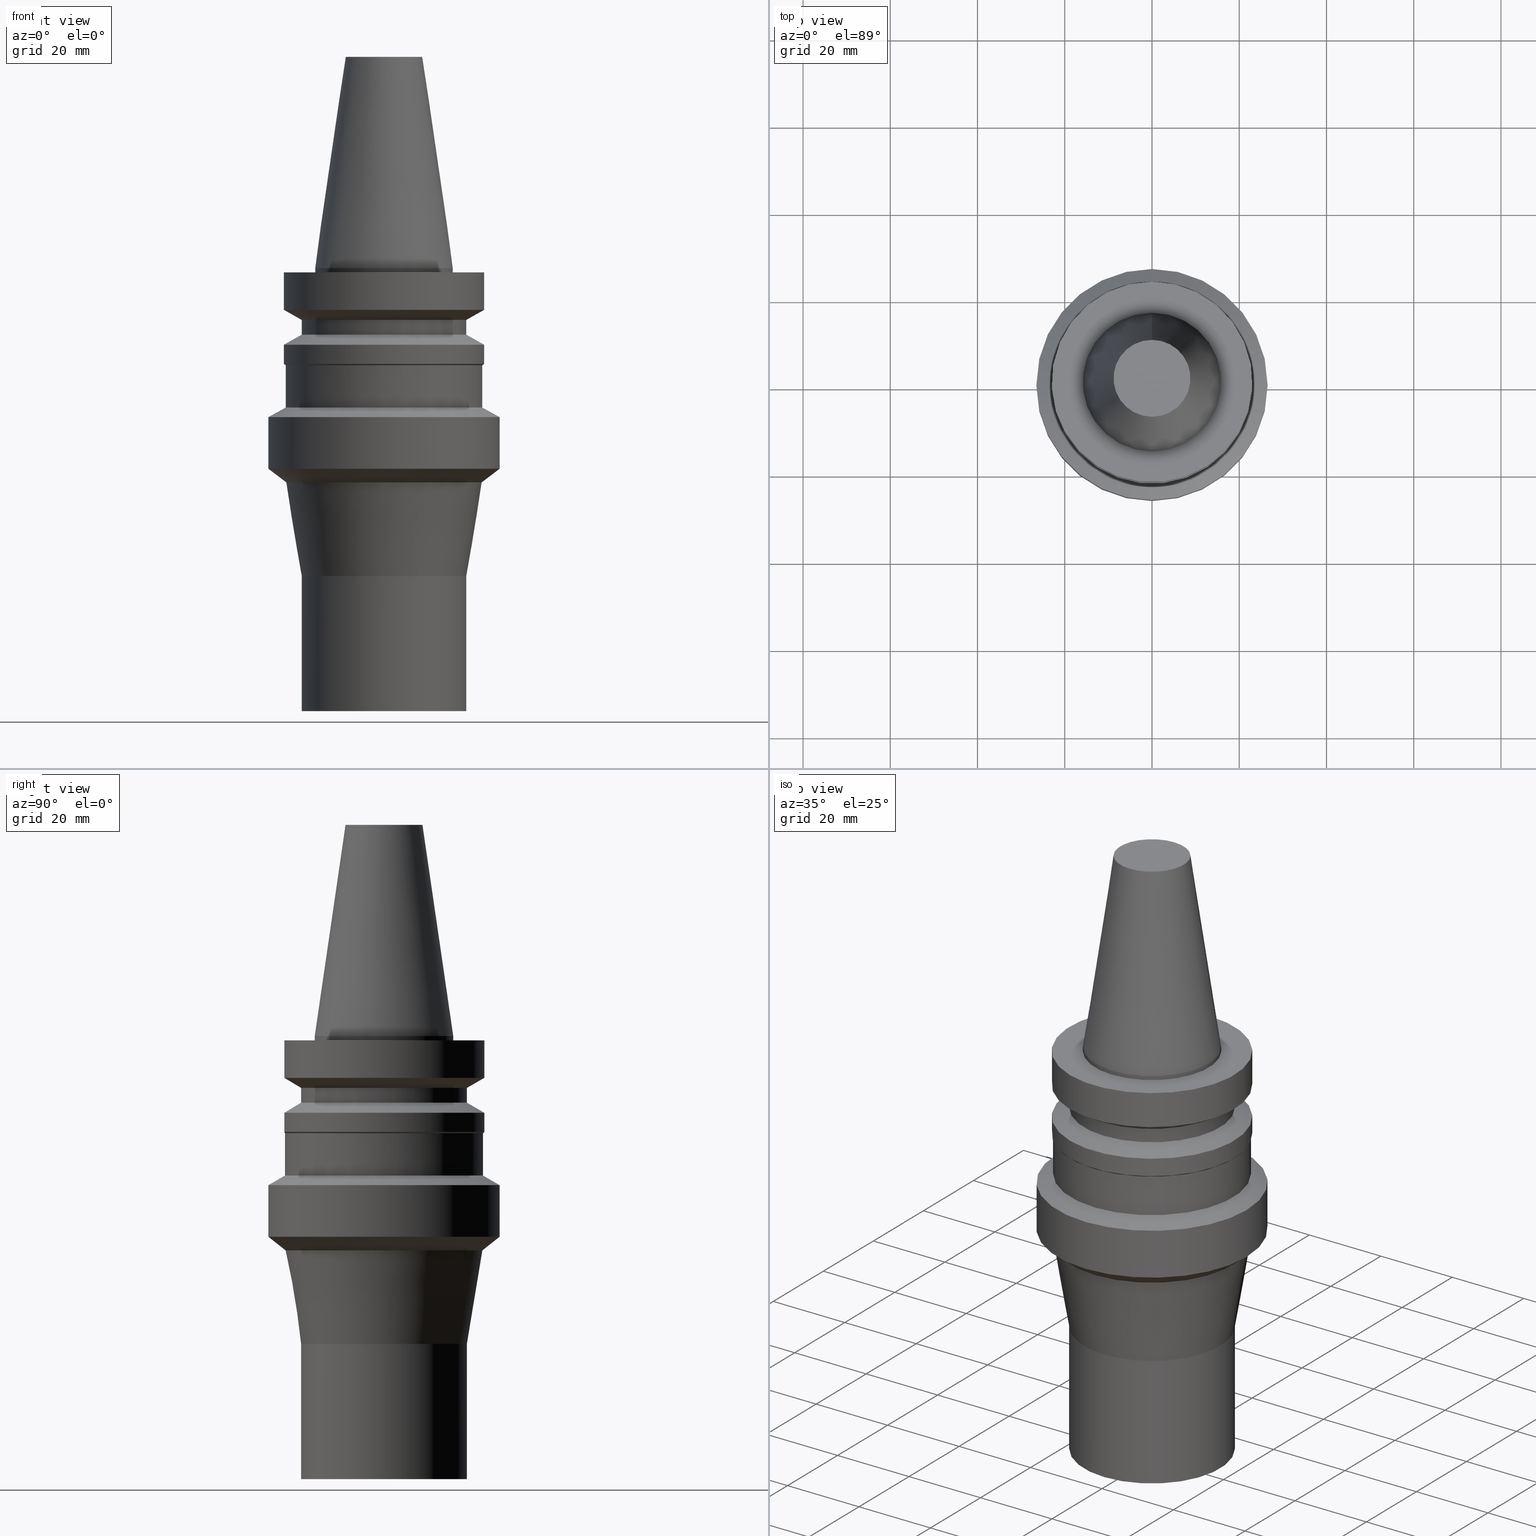
[diagram: canonical four-view strip — front | top / right | iso, engineering-drawing reading convention]
A machine part, canonical four-view strip (front | top / right | iso — engineering-drawing reading convention). The complete STEP part file that produces these views, byte-faithful:
ISO-10303-21;
HEADER;
FILE_DESCRIPTION((''),'1');
FILE_NAME('V:/90_\X2\53D65F9730C730FC30BF\X0\/00_\X2\6DE18DEF30C730FC30BF\X0\/ALL/BBT-BKUS\X2\FF76FF80FF9BFF78FF9E752852A05DE556F3\X0\201801/BBT30-HDC/BBT30-HDC.750-4.stp','2018-02-07T04:40:43',(''),(''),'Spatial Interop R21 SP3','Kubotek KeyCreator 2011 V10.0.2 (22737)',' ');
FILE_SCHEMA(('automotive_design'));
ENDSEC;
DATA;
#1=MECHANICAL_DESIGN_GEOMETRIC_PRESENTATION_REPRESENTATION(' ',(#10,#11,#12,#13,#14,#15,#16,#17,#18,#19,#20,#21,#22,#23,#24,#25,#26,#27,#28,#29,#30,#31,#32,#33,#34,#35,#36,#37,#38,#39,#40,#41,#42,#43),#6);
#2=PRODUCT_DEFINITION_CONTEXT('',#44,'design');
#3=APPLICATION_PROTOCOL_DEFINITION('INTERNATIONAL STANDARD','automotive_design',1994,#44);
#4=PRODUCT_CATEGORY_RELATIONSHIP('NONE','NONE',#45,#46);
#5=SHAPE_DEFINITION_REPRESENTATION(#47,#48);
#6= (GEOMETRIC_REPRESENTATION_CONTEXT(3)GLOBAL_UNCERTAINTY_ASSIGNED_CONTEXT((#51))GLOBAL_UNIT_ASSIGNED_CONTEXT((#53,#54,#55))REPRESENTATION_CONTEXT('NONE','WORKSPACE'));
#10=STYLED_ITEM('',(#57),#58);
#11=STYLED_ITEM('',(#59,#60),#61);
#12=STYLED_ITEM('',(#62),#63);
#13=STYLED_ITEM('',(#64,#65),#66);
#14=STYLED_ITEM('',(#67),#68);
#15=STYLED_ITEM('',(#69,#70),#71);
#16=STYLED_ITEM('',(#72),#73);
#17=STYLED_ITEM('',(#74,#75),#76);
#18=STYLED_ITEM('',(#77),#78);
#19=STYLED_ITEM('',(#79),#80);
#20=STYLED_ITEM('',(#81,#82),#83);
#21=STYLED_ITEM('',(#84,#85),#86);
#22=STYLED_ITEM('',(#87),#88);
#23=STYLED_ITEM('',(#89,#90),#91);
#24=STYLED_ITEM('',(#92,#93),#94);
#25=STYLED_ITEM('',(#95,#96),#97);
#26=STYLED_ITEM('',(#98,#99),#100);
#27=STYLED_ITEM('',(#101,#102),#103);
#28=STYLED_ITEM('',(#104,#105),#106);
#29=STYLED_ITEM('',(#107),#108);
#30=STYLED_ITEM('',(#109,#110),#111);
#31=STYLED_ITEM('',(#112),#113);
#32=STYLED_ITEM('',(#114),#115);
#33=STYLED_ITEM('',(#116,#117),#118);
#34=STYLED_ITEM('',(#119,#120),#121);
#35=STYLED_ITEM('',(#122,#123),#124);
#36=STYLED_ITEM('',(#125),#126);
#37=STYLED_ITEM('',(#127),#128);
#38=STYLED_ITEM('',(#129),#130);
#39=STYLED_ITEM('',(#131),#132);
#40=STYLED_ITEM('',(#133),#134);
#41=STYLED_ITEM('',(#135,#136),#137);
#42=STYLED_ITEM('',(#138,#139),#140);
#43=STYLED_ITEM('',(#141),#142);
#44=APPLICATION_CONTEXT(' ');
#45=PRODUCT_CATEGORY('part','NONE');
#46=PRODUCT_RELATED_PRODUCT_CATEGORY('detail',' ',(#143));
#47=PRODUCT_DEFINITION_SHAPE('NONE','NONE',#144);
#48=ADVANCED_BREP_SHAPE_REPRESENTATION('Unnamed[1]',(#111,#145),#6);
#51=UNCERTAINTY_MEASURE_WITH_UNIT(LENGTH_MEASURE(1.0E-006),#53,'','');
#53= (CONVERSION_BASED_UNIT('MILLIMETRE',#148)LENGTH_UNIT()NAMED_UNIT(#151));
#54= (NAMED_UNIT(#153)PLANE_ANGLE_UNIT()SI_UNIT($,.RADIAN.));
#55= (NAMED_UNIT(#153)SOLID_ANGLE_UNIT()SI_UNIT($,.STERADIAN.));
#57=PRESENTATION_STYLE_ASSIGNMENT((#159));
#58=EDGE_CURVE('Unnamed[1]',#160,#160,#161,.T.);
#59=PRESENTATION_STYLE_ASSIGNMENT((#162));
#60=PRESENTATION_STYLE_ASSIGNMENT((#163));
#61=ADVANCED_FACE('Unnamed[1]',(#164,#165),#166,.T.);
#62=PRESENTATION_STYLE_ASSIGNMENT((#167));
#63=EDGE_CURVE('Unnamed[1]',#168,#168,#169,.T.);
#64=PRESENTATION_STYLE_ASSIGNMENT((#170));
#65=PRESENTATION_STYLE_ASSIGNMENT((#171));
#66=ADVANCED_FACE('Unnamed[1]',(#172,#173),#174,.T.);
#67=PRESENTATION_STYLE_ASSIGNMENT((#175));
#68=EDGE_CURVE('Unnamed[1]',#176,#176,#177,.T.);
#69=PRESENTATION_STYLE_ASSIGNMENT((#178));
#70=PRESENTATION_STYLE_ASSIGNMENT((#179));
#71=ADVANCED_FACE('Unnamed[1]',(#180),#181,.T.);
#72=PRESENTATION_STYLE_ASSIGNMENT((#182));
#73=EDGE_CURVE('Unnamed[1]',#183,#183,#184,.T.);
#74=PRESENTATION_STYLE_ASSIGNMENT((#185));
#75=PRESENTATION_STYLE_ASSIGNMENT((#186));
#76=ADVANCED_FACE('Unnamed[1]',(#187,#188),#189,.T.);
#77=PRESENTATION_STYLE_ASSIGNMENT((#190));
#78=EDGE_CURVE('Unnamed[1]',#191,#191,#192,.T.);
#79=PRESENTATION_STYLE_ASSIGNMENT((#193));
#80=EDGE_CURVE('Unnamed[1]',#194,#194,#195,.T.);
#81=PRESENTATION_STYLE_ASSIGNMENT((#196));
#82=PRESENTATION_STYLE_ASSIGNMENT((#197));
#83=ADVANCED_FACE('Unnamed[1]',(#198,#199),#200,.T.);
#84=PRESENTATION_STYLE_ASSIGNMENT((#201));
#85=PRESENTATION_STYLE_ASSIGNMENT((#202));
#86=ADVANCED_FACE('Unnamed[1]',(#203,#204),#205,.T.);
#87=PRESENTATION_STYLE_ASSIGNMENT((#206));
#88=EDGE_CURVE('Unnamed[1]',#207,#207,#208,.T.);
#89=PRESENTATION_STYLE_ASSIGNMENT((#209));
#90=PRESENTATION_STYLE_ASSIGNMENT((#210));
#91=ADVANCED_FACE('Unnamed[1]',(#211,#212),#213,.T.);
#92=PRESENTATION_STYLE_ASSIGNMENT((#214));
#93=PRESENTATION_STYLE_ASSIGNMENT((#215));
#94=ADVANCED_FACE('Unnamed[1]',(#216,#217),#218,.T.);
#95=PRESENTATION_STYLE_ASSIGNMENT((#219));
#96=PRESENTATION_STYLE_ASSIGNMENT((#220));
#97=ADVANCED_FACE('Unnamed[1]',(#221,#222),#223,.T.);
#98=PRESENTATION_STYLE_ASSIGNMENT((#224));
#99=PRESENTATION_STYLE_ASSIGNMENT((#225));
#100=ADVANCED_FACE('Unnamed[1]',(#226,#227),#228,.T.);
#101=PRESENTATION_STYLE_ASSIGNMENT((#229));
#102=PRESENTATION_STYLE_ASSIGNMENT((#230));
#103=ADVANCED_FACE('Unnamed[1]',(#231,#232),#233,.T.);
#104=PRESENTATION_STYLE_ASSIGNMENT((#234));
#105=PRESENTATION_STYLE_ASSIGNMENT((#235));
#106=ADVANCED_FACE('Unnamed[1]',(#236,#237),#238,.T.);
#107=PRESENTATION_STYLE_ASSIGNMENT((#239));
#108=EDGE_CURVE('Unnamed[1]',#240,#240,#241,.T.);
#109=PRESENTATION_STYLE_ASSIGNMENT((#242));
#110=PRESENTATION_STYLE_ASSIGNMENT((#243));
#111=MANIFOLD_SOLID_BREP('Unnamed[1]',#244);
#112=PRESENTATION_STYLE_ASSIGNMENT((#245));
#113=EDGE_CURVE('Unnamed[1]',#246,#246,#247,.T.);
#114=PRESENTATION_STYLE_ASSIGNMENT((#248));
#115=EDGE_CURVE('Unnamed[1]',#249,#249,#250,.T.);
#116=PRESENTATION_STYLE_ASSIGNMENT((#251));
#117=PRESENTATION_STYLE_ASSIGNMENT((#252));
#118=ADVANCED_FACE('Unnamed[1]',(#253),#254,.T.);
#119=PRESENTATION_STYLE_ASSIGNMENT((#255));
#120=PRESENTATION_STYLE_ASSIGNMENT((#256));
#121=ADVANCED_FACE('Unnamed[1]',(#257,#258),#259,.T.);
#122=PRESENTATION_STYLE_ASSIGNMENT((#260));
#123=PRESENTATION_STYLE_ASSIGNMENT((#261));
#124=ADVANCED_FACE('Unnamed[1]',(#262,#263),#264,.T.);
#125=PRESENTATION_STYLE_ASSIGNMENT((#265));
#126=EDGE_CURVE('Unnamed[1]',#266,#266,#267,.T.);
#127=PRESENTATION_STYLE_ASSIGNMENT((#268));
#128=EDGE_CURVE('Unnamed[1]',#269,#269,#270,.T.);
#129=PRESENTATION_STYLE_ASSIGNMENT((#271));
#130=EDGE_CURVE('Unnamed[1]',#272,#272,#273,.T.);
#131=PRESENTATION_STYLE_ASSIGNMENT((#274));
#132=EDGE_CURVE('Unnamed[1]',#275,#275,#276,.T.);
#133=PRESENTATION_STYLE_ASSIGNMENT((#277));
#134=EDGE_CURVE('Unnamed[1]',#278,#278,#279,.T.);
#135=PRESENTATION_STYLE_ASSIGNMENT((#280));
#136=PRESENTATION_STYLE_ASSIGNMENT((#281));
#137=ADVANCED_FACE('Unnamed[1]',(#282,#283),#284,.T.);
#138=PRESENTATION_STYLE_ASSIGNMENT((#285));
#139=PRESENTATION_STYLE_ASSIGNMENT((#286));
#140=ADVANCED_FACE('Unnamed[1]',(#287,#288),#289,.T.);
#141=PRESENTATION_STYLE_ASSIGNMENT((#290));
#142=EDGE_CURVE('Unnamed[1]',#291,#291,#292,.T.);
#143=PRODUCT('Unnamed[1]','Unnamed[1]','PART-Unnamed[1]-DESC',(#293));
#144=PRODUCT_DEFINITION('NONE','NONE',#294,#2);
#145=AXIS2_PLACEMENT_3D('',#295,#296,#297);
#148=LENGTH_MEASURE_WITH_UNIT(LENGTH_MEASURE(1.0),#298);
#151=DIMENSIONAL_EXPONENTS(1.0,0.0,0.0,0.0,0.0,0.0,0.0);
#153=DIMENSIONAL_EXPONENTS(0.0,0.0,0.0,0.0,0.0,0.0,0.0);
#159=CURVE_STYLE('',#299,POSITIVE_LENGTH_MEASURE(1000.0),#300);
#160=VERTEX_POINT('',#301);
#161=CIRCLE('',#302,22.700000000002);
#162=SURFACE_STYLE_USAGE(.BOTH.,#303);
#163=CURVE_STYLE('',#304,POSITIVE_LENGTH_MEASURE(1000.0),#305);
#164=FACE_BOUND('',#306,.T.);
#165=FACE_BOUND('',#307,.T.);
#166=CYLINDRICAL_SURFACE('',#308,19.0);
#167=CURVE_STYLE('',#309,POSITIVE_LENGTH_MEASURE(1000.0),#310);
#168=VERTEX_POINT('',#311);
#169=CIRCLE('',#312,19.0000000000001);
#170=SURFACE_STYLE_USAGE(.BOTH.,#313);
#171=CURVE_STYLE('',#314,POSITIVE_LENGTH_MEASURE(1000.0),#315);
#172=FACE_BOUND('',#316,.T.);
#173=FACE_BOUND('',#317,.T.);
#174=CONICAL_SURFACE('',#318,12.3457500009933,0.144815870013618);
#175=CURVE_STYLE('',#319,POSITIVE_LENGTH_MEASURE(1000.0),#320);
#176=VERTEX_POINT('',#321);
#177=CIRCLE('',#322,22.7000000000043);
#178=SURFACE_STYLE_USAGE(.BOTH.,#323);
#179=CURVE_STYLE('',#324,POSITIVE_LENGTH_MEASURE(1000.0),#325);
#180=FACE_OUTER_BOUND('',#326,.T.);
#181=PLANE('',#327);
#182=CURVE_STYLE('',#328,POSITIVE_LENGTH_MEASURE(1000.0),#329);
#183=VERTEX_POINT('',#330);
#184=CIRCLE('',#331,19.0);
#185=SURFACE_STYLE_USAGE(.BOTH.,#332);
#186=CURVE_STYLE('',#333,POSITIVE_LENGTH_MEASURE(1000.0),#334);
#187=FACE_BOUND('',#335,.T.);
#188=FACE_BOUND('',#336,.T.);
#189=CYLINDRICAL_SURFACE('',#337,23.0);
#190=CURVE_STYLE('',#338,POSITIVE_LENGTH_MEASURE(1000.0),#339);
#191=VERTEX_POINT('',#340);
#192=CIRCLE('',#341,19.0);
#193=CURVE_STYLE('',#342,POSITIVE_LENGTH_MEASURE(1000.0),#343);
#194=VERTEX_POINT('',#344);
#195=CIRCLE('',#345,23.0);
#196=SURFACE_STYLE_USAGE(.BOTH.,#346);
#197=CURVE_STYLE('',#347,POSITIVE_LENGTH_MEASURE(1000.0),#348);
#198=FACE_BOUND('',#349,.T.);
#199=FACE_BOUND('',#350,.T.);
#200=CONICAL_SURFACE('',#351,21.0,1.04719755058882);
#201=SURFACE_STYLE_USAGE(.BOTH.,#352);
#202=CURVE_STYLE('',#353,POSITIVE_LENGTH_MEASURE(1000.0),#354);
#203=FACE_BOUND('',#355,.T.);
#204=FACE_BOUND('',#356,.T.);
#205=CYLINDRICAL_SURFACE('',#357,19.0);
#206=CURVE_STYLE('',#358,POSITIVE_LENGTH_MEASURE(1000.0),#359);
#207=VERTEX_POINT('',#360);
#208=CIRCLE('',#361,23.0);
#209=SURFACE_STYLE_USAGE(.BOTH.,#362);
#210=CURVE_STYLE('',#363,POSITIVE_LENGTH_MEASURE(1000.0),#364);
#211=FACE_BOUND('',#365,.T.);
#212=FACE_BOUND('',#366,.T.);
#213=CONICAL_SURFACE('',#367,24.5228492706501,0.901726513155034);
#214=SURFACE_STYLE_USAGE(.BOTH.,#368);
#215=CURVE_STYLE('',#369,POSITIVE_LENGTH_MEASURE(1000.0),#370);
#216=FACE_BOUND('',#371,.T.);
#217=FACE_BOUND('',#372,.T.);
#218=CYLINDRICAL_SURFACE('',#373,15.875);
#219=SURFACE_STYLE_USAGE(.BOTH.,#374);
#220=CURVE_STYLE('',#375,POSITIVE_LENGTH_MEASURE(1000.0),#376);
#221=FACE_BOUND('',#377,.T.);
#222=FACE_BOUND('',#378,.T.);
#223=CONICAL_SURFACE('',#379,24.6000000000021,1.04719755119659);
#224=SURFACE_STYLE_USAGE(.BOTH.,#380);
#225=CURVE_STYLE('',#381,POSITIVE_LENGTH_MEASURE(1000.0),#382);
#226=FACE_BOUND('',#383,.T.);
#227=FACE_BOUND('',#384,.T.);
#228=CONICAL_SURFACE('',#385,20.7728492706497,0.163916079430991);
#229=SURFACE_STYLE_USAGE(.BOTH.,#386);
#230=CURVE_STYLE('',#387,POSITIVE_LENGTH_MEASURE(1000.0),#388);
#231=FACE_BOUND('',#389,.T.);
#232=FACE_BOUND('',#390,.T.);
#233=CYLINDRICAL_SURFACE('',#391,26.5000000000004);
#234=SURFACE_STYLE_USAGE(.BOTH.,#392);
#235=CURVE_STYLE('',#393,POSITIVE_LENGTH_MEASURE(1000.0),#394);
#236=FACE_BOUND('',#395,.T.);
#237=FACE_BOUND('',#396,.T.);
#238=CONICAL_SURFACE('',#397,21.0,1.04719755058881);
#239=CURVE_STYLE('',#398,POSITIVE_LENGTH_MEASURE(1000.0),#399);
#240=VERTEX_POINT('',#400);
#241=CIRCLE('',#401,22.5456985412993);
#242=SURFACE_STYLE_USAGE(.BOTH.,#402);
#243=CURVE_STYLE('',#403,POSITIVE_LENGTH_MEASURE(1000.0),#404);
#244=CLOSED_SHELL('',(#71,#66,#94,#137,#76,#106,#61,#83,#121,#140,#124,#97,#103,#91,#100,#86,#118));
#245=CURVE_STYLE('',#405,POSITIVE_LENGTH_MEASURE(1000.0),#406);
#246=VERTEX_POINT('',#407);
#247=CIRCLE('',#408,15.875);
#248=CURVE_STYLE('',#409,POSITIVE_LENGTH_MEASURE(1000.0),#410);
#249=VERTEX_POINT('',#411);
#250=CIRCLE('',#412,8.81650000198669);
#251=SURFACE_STYLE_USAGE(.BOTH.,#413);
#252=CURVE_STYLE('',#414,POSITIVE_LENGTH_MEASURE(1000.0),#415);
#253=FACE_OUTER_BOUND('',#416,.T.);
#254=PLANE('',#417);
#255=SURFACE_STYLE_USAGE(.BOTH.,#418);
#256=CURVE_STYLE('',#419,POSITIVE_LENGTH_MEASURE(1000.0),#420);
#257=FACE_BOUND('',#421,.T.);
#258=FACE_BOUND('',#422,.T.);
#259=CYLINDRICAL_SURFACE('',#423,23.0);
#260=SURFACE_STYLE_USAGE(.BOTH.,#424);
#261=CURVE_STYLE('',#425,POSITIVE_LENGTH_MEASURE(1000.0),#426);
#262=FACE_BOUND('',#427,.T.);
#263=FACE_BOUND('',#428,.T.);
#264=CYLINDRICAL_SURFACE('',#429,22.7000000000031);
#265=CURVE_STYLE('',#430,POSITIVE_LENGTH_MEASURE(1000.0),#431);
#266=VERTEX_POINT('',#432);
#267=CIRCLE('',#433,23.0);
#268=CURVE_STYLE('',#434,POSITIVE_LENGTH_MEASURE(1000.0),#435);
#269=VERTEX_POINT('',#436);
#270=CIRCLE('',#437,23.0);
#271=CURVE_STYLE('',#438,POSITIVE_LENGTH_MEASURE(1000.0),#439);
#272=VERTEX_POINT('',#440);
#273=CIRCLE('',#441,26.4999999999999);
#274=CURVE_STYLE('',#442,POSITIVE_LENGTH_MEASURE(1000.0),#443);
#275=VERTEX_POINT('',#444);
#276=CIRCLE('',#445,26.5000000000008);
#277=CURVE_STYLE('',#446,POSITIVE_LENGTH_MEASURE(1000.0),#447);
#278=VERTEX_POINT('',#448);
#279=CIRCLE('',#449,19.0);
#280=SURFACE_STYLE_USAGE(.BOTH.,#450);
#281=CURVE_STYLE('',#451,POSITIVE_LENGTH_MEASURE(1000.0),#452);
#282=FACE_OUTER_BOUND('',#453,.T.);
#283=FACE_BOUND('',#454,.T.);
#284=PLANE('',#455);
#285=SURFACE_STYLE_USAGE(.BOTH.,#456);
#286=CURVE_STYLE('',#457,POSITIVE_LENGTH_MEASURE(1000.0),#458);
#287=FACE_BOUND('',#459,.T.);
#288=FACE_BOUND('',#460,.T.);
#289=CONICAL_SURFACE('',#461,22.850000000001,0.785398163397348);
#290=CURVE_STYLE('',#462,POSITIVE_LENGTH_MEASURE(1000.0),#463);
#291=VERTEX_POINT('',#464);
#292=CIRCLE('',#465,15.875);
#293=PRODUCT_CONTEXT('',#44,'mechanical');
#294=PRODUCT_DEFINITION_FORMATION_WITH_SPECIFIED_SOURCE(' ','NONE',#143,.NOT_KNOWN.);
#295=CARTESIAN_POINT('',(0.0,0.0,0.0));
#296=DIRECTION('',(0.0,0.0,1.0));
#297=DIRECTION('',(1.0,0.0,0.0));
#298= (NAMED_UNIT(#151)LENGTH_UNIT()SI_UNIT(.MILLI.,.METRE.));
#299=DRAUGHTING_PRE_DEFINED_CURVE_FONT('continuous');
#300=COLOUR_RGB('',0.0,1.0,0.0);
#301=CARTESIAN_POINT('',(1.36548118104924E-015,22.700000000002,-22.299999999999));
#302=AXIS2_PLACEMENT_3D('',#467,#468,#469);
#303=SURFACE_SIDE_STYLE('',(#470));
#304=DRAUGHTING_PRE_DEFINED_CURVE_FONT('continuous');
#305=COLOUR_RGB('',0.0,1.0,0.0);
#306=EDGE_LOOP('',(#471));
#307=EDGE_LOOP('',(#472));
#308=AXIS2_PLACEMENT_3D('',#473,#474,#475);
#309=DRAUGHTING_PRE_DEFINED_CURVE_FONT('continuous');
#310=COLOUR_RGB('',0.0,1.0,0.0);
#311=CARTESIAN_POINT('',(4.32300320099011E-015,19.0000000000001,-70.5999999999992));
#312=AXIS2_PLACEMENT_3D('',#476,#477,#478);
#313=SURFACE_SIDE_STYLE('',(#479));
#314=DRAUGHTING_PRE_DEFINED_CURVE_FONT('continuous');
#315=COLOUR_RGB('',0.0,1.0,0.0);
#316=EDGE_LOOP('',(#480));
#317=EDGE_LOOP('',(#481));
#318=AXIS2_PLACEMENT_3D('',#482,#483,#484);
#319=DRAUGHTING_PRE_DEFINED_CURVE_FONT('continuous');
#320=COLOUR_RGB('',0.0,1.0,0.0);
#321=CARTESIAN_POINT('',(1.9594348786359E-015,22.7000000000043,-32.0000000000022));
#322=AXIS2_PLACEMENT_3D('',#485,#486,#487);
#323=SURFACE_SIDE_STYLE('',(#488));
#324=DRAUGHTING_PRE_DEFINED_CURVE_FONT('continuous');
#325=COLOUR_RGB('',0.0,1.0,0.0);
#326=EDGE_LOOP('',(#489));
#327=AXIS2_PLACEMENT_3D('',#490,#491,#492);
#328=DRAUGHTING_PRE_DEFINED_CURVE_FONT('continuous');
#329=COLOUR_RGB('',0.0,1.0,0.0);
#330=CARTESIAN_POINT('',(6.22120573966856E-015,19.0,-101.6));
#331=AXIS2_PLACEMENT_3D('',#493,#494,#495);
#332=SURFACE_SIDE_STYLE('',(#496));
#333=DRAUGHTING_PRE_DEFINED_CURVE_FONT('continuous');
#334=COLOUR_RGB('',0.0,1.0,0.0);
#335=EDGE_LOOP('',(#497));
#336=EDGE_LOOP('',(#498));
#337=AXIS2_PLACEMENT_3D('',#499,#500,#501);
#338=DRAUGHTING_PRE_DEFINED_CURVE_FONT('continuous');
#339=COLOUR_RGB('',0.0,1.0,0.0);
#340=CARTESIAN_POINT('',(9.36279151221199E-016,19.0,-15.29059892));
#341=AXIS2_PLACEMENT_3D('',#502,#503,#504);
#342=DRAUGHTING_PRE_DEFINED_CURVE_FONT('continuous');
#343=COLOUR_RGB('',0.0,1.0,0.0);
#344=CARTESIAN_POINT('',(1.34711147906215E-015,23.0,-22.000000000001));
#345=AXIS2_PLACEMENT_3D('',#505,#506,#507);
#346=SURFACE_SIDE_STYLE('',(#508));
#347=DRAUGHTING_PRE_DEFINED_CURVE_FONT('continuous');
#348=COLOUR_RGB('',0.0,1.0,0.0);
#349=EDGE_LOOP('',(#509));
#350=EDGE_LOOP('',(#510));
#351=AXIS2_PLACEMENT_3D('',#511,#512,#513);
#352=SURFACE_SIDE_STYLE('',(#514));
#353=DRAUGHTING_PRE_DEFINED_CURVE_FONT('continuous');
#354=COLOUR_RGB('',0.0,1.0,0.0);
#355=EDGE_LOOP('',(#515));
#356=EDGE_LOOP('',(#516));
#357=AXIS2_PLACEMENT_3D('',#517,#518,#519);
#358=DRAUGHTING_PRE_DEFINED_CURVE_FONT('continuous');
#359=COLOUR_RGB('',0.0,1.0,0.0);
#360=CARTESIAN_POINT('',(1.07768918324967E-015,23.0,-17.6));
#361=AXIS2_PLACEMENT_3D('',#520,#521,#522);
#362=SURFACE_SIDE_STYLE('',(#523));
#363=DRAUGHTING_PRE_DEFINED_CURVE_FONT('continuous');
#364=COLOUR_RGB('',0.0,1.0,0.0);
#365=EDGE_LOOP('',(#524));
#366=EDGE_LOOP('',(#525));
#367=AXIS2_PLACEMENT_3D('',#526,#527,#528);
#368=SURFACE_SIDE_STYLE('',(#529));
#369=DRAUGHTING_PRE_DEFINED_CURVE_FONT('continuous');
#370=COLOUR_RGB('',0.0,1.0,0.0);
#371=EDGE_LOOP('',(#530));
#372=EDGE_LOOP('',(#531));
#373=AXIS2_PLACEMENT_3D('',#532,#533,#534);
#374=SURFACE_SIDE_STYLE('',(#535));
#375=DRAUGHTING_PRE_DEFINED_CURVE_FONT('continuous');
#376=COLOUR_RGB('',0.0,1.0,0.0);
#377=EDGE_LOOP('',(#536));
#378=EDGE_LOOP('',(#537));
#379=AXIS2_PLACEMENT_3D('',#538,#539,#540);
#380=SURFACE_SIDE_STYLE('',(#541));
#381=DRAUGHTING_PRE_DEFINED_CURVE_FONT('continuous');
#382=COLOUR_RGB('',0.0,1.0,0.0);
#383=EDGE_LOOP('',(#542));
#384=EDGE_LOOP('',(#543));
#385=AXIS2_PLACEMENT_3D('',#544,#545,#546);
#386=SURFACE_SIDE_STYLE('',(#547));
#387=DRAUGHTING_PRE_DEFINED_CURVE_FONT('continuous');
#388=COLOUR_RGB('',0.0,1.0,0.0);
#389=EDGE_LOOP('',(#548));
#390=EDGE_LOOP('',(#549));
#391=AXIS2_PLACEMENT_3D('',#550,#551,#552);
#392=SURFACE_SIDE_STYLE('',(#553));
#393=DRAUGHTING_PRE_DEFINED_CURVE_FONT('continuous');
#394=COLOUR_RGB('',0.0,1.0,0.0);
#395=EDGE_LOOP('',(#554));
#396=EDGE_LOOP('',(#555));
#397=AXIS2_PLACEMENT_3D('',#556,#557,#558);
#398=DRAUGHTING_PRE_DEFINED_CURVE_FONT('continuous');
#399=COLOUR_RGB('',0.0,1.0,0.0);
#400=CARTESIAN_POINT('',(3.0103593006901E-015,22.5456985412993,-49.1628982786879));
#401=AXIS2_PLACEMENT_3D('',#559,#560,#561);
#402=SURFACE_SIDE_STYLE('',(#562));
#403=DRAUGHTING_PRE_DEFINED_CURVE_FONT('continuous');
#404=COLOUR_RGB('',0.0,1.0,0.0);
#405=DRAUGHTING_PRE_DEFINED_CURVE_FONT('continuous');
#406=COLOUR_RGB('',0.0,1.0,0.0);
#407=CARTESIAN_POINT('',(-1.95674482349743E-031,15.875,1.94412679364642E-015));
#408=AXIS2_PLACEMENT_3D('',#563,#564,#565);
#409=DRAUGHTING_PRE_DEFINED_CURVE_FONT('continuous');
#410=COLOUR_RGB('',0.0,1.0,0.0);
#411=CARTESIAN_POINT('',(-2.96364525393659E-015,8.81650000198669,48.4));
#412=AXIS2_PLACEMENT_3D('',#566,#567,#568);
#413=SURFACE_SIDE_STYLE('',(#569));
#414=DRAUGHTING_PRE_DEFINED_CURVE_FONT('continuous');
#415=COLOUR_RGB('',0.0,1.0,0.0);
#416=EDGE_LOOP('',(#570));
#417=AXIS2_PLACEMENT_3D('',#571,#572,#573);
#418=SURFACE_SIDE_STYLE('',(#574));
#419=DRAUGHTING_PRE_DEFINED_CURVE_FONT('continuous');
#420=COLOUR_RGB('',0.0,1.0,0.0);
#421=EDGE_LOOP('',(#575));
#422=EDGE_LOOP('',(#576));
#423=AXIS2_PLACEMENT_3D('',#577,#578,#579);
#424=SURFACE_SIDE_STYLE('',(#580));
#425=DRAUGHTING_PRE_DEFINED_CURVE_FONT('continuous');
#426=COLOUR_RGB('',0.0,1.0,0.0);
#427=EDGE_LOOP('',(#581));
#428=EDGE_LOOP('',(#582));
#429=AXIS2_PLACEMENT_3D('',#583,#584,#585);
#430=DRAUGHTING_PRE_DEFINED_CURVE_FONT('continuous');
#431=COLOUR_RGB('',0.0,1.0,0.0);
#432=CARTESIAN_POINT('',(5.87830463590729E-016,23.0,-9.59999999999999));
#433=AXIS2_PLACEMENT_3D('',#586,#587,#588);
#434=DRAUGHTING_PRE_DEFINED_CURVE_FONT('continuous');
#435=COLOUR_RGB('',0.0,1.0,0.0);
#436=CARTESIAN_POINT('',(6.12323399573674E-017,23.0,-0.999999999999997));
#437=AXIS2_PLACEMENT_3D('',#589,#590,#591);
#438=DRAUGHTING_PRE_DEFINED_CURVE_FONT('continuous');
#439=COLOUR_RGB('',0.0,1.0,0.0);
#440=CARTESIAN_POINT('',(2.09377440887423E-015,26.4999999999999,-34.1939310229203));
#441=AXIS2_PLACEMENT_3D('',#592,#593,#594);
#442=DRAUGHTING_PRE_DEFINED_CURVE_FONT('continuous');
#443=COLOUR_RGB('',0.0,1.0,0.0);
#444=CARTESIAN_POINT('',(2.81889622590547E-015,26.5000000000008,-46.0360689770814));
#445=AXIS2_PLACEMENT_3D('',#595,#596,#597);
#446=DRAUGHTING_PRE_DEFINED_CURVE_FONT('continuous');
#447=COLOUR_RGB('',0.0,1.0,0.0);
#448=CARTESIAN_POINT('',(7.29240495619202E-016,19.0,-11.90940108));
#449=AXIS2_PLACEMENT_3D('',#598,#599,#600);
#450=SURFACE_SIDE_STYLE('',(#601));
#451=DRAUGHTING_PRE_DEFINED_CURVE_FONT('continuous');
#452=COLOUR_RGB('',0.0,1.0,0.0);
#453=EDGE_LOOP('',(#602));
#454=EDGE_LOOP('',(#603));
#455=AXIS2_PLACEMENT_3D('',#604,#605,#606);
#456=SURFACE_SIDE_STYLE('',(#607));
#457=DRAUGHTING_PRE_DEFINED_CURVE_FONT('continuous');
#458=COLOUR_RGB('',0.0,1.0,0.0);
#459=EDGE_LOOP('',(#608));
#460=EDGE_LOOP('',(#609));
#461=AXIS2_PLACEMENT_3D('',#610,#611,#612);
#462=DRAUGHTING_PRE_DEFINED_CURVE_FONT('continuous');
#463=COLOUR_RGB('',0.0,1.0,0.0);
#464=CARTESIAN_POINT('',(6.12323399573675E-017,15.875,-0.999999999999998));
#465=AXIS2_PLACEMENT_3D('',#613,#614,#615);
#467=CARTESIAN_POINT('',(1.36548118104924E-015,2.73096236209848E-015,-22.299999999999));
#468=DIRECTION('',(6.12323399573677E-017,1.22464679914735E-016,-1.0));
#469=DIRECTION('',(-1.23259516440783E-032,1.0,1.22464679914735E-016));
#470=SURFACE_STYLE_FILL_AREA(#616);
#471=ORIENTED_EDGE('',*,*,#78,.F.);
#472=ORIENTED_EDGE('',*,*,#134,.T.);
#473=CARTESIAN_POINT('',(8.32759823420201E-016,1.6655196468404E-015,-13.6));
#474=DIRECTION('',(6.12323399573677E-017,1.22464679914735E-016,-1.0));
#475=DIRECTION('',(-1.23259516440783E-032,1.0,1.22464679914735E-016));
#476=CARTESIAN_POINT('',(4.32300320099011E-015,8.64600640198022E-015,-70.5999999999992));
#477=DIRECTION('',(6.12323399573677E-017,1.22464679914735E-016,-1.0));
#478=DIRECTION('',(-1.23259516440783E-032,1.0,1.22464679914735E-016));
#479=SURFACE_STYLE_FILL_AREA(#617);
#480=ORIENTED_EDGE('',*,*,#113,.F.);
#481=ORIENTED_EDGE('',*,*,#115,.T.);
#482=CARTESIAN_POINT('',(-1.4818226269683E-015,-2.96364525393659E-015,24.2));
#483=DIRECTION('',(6.12323399573677E-017,1.22464679914735E-016,-1.0));
#484=DIRECTION('',(-1.23259516440783E-032,1.0,1.22464679914735E-016));
#485=CARTESIAN_POINT('',(1.9594348786359E-015,3.91886975727179E-015,-32.0000000000022));
#486=DIRECTION('',(6.12323399573677E-017,1.22464679914735E-016,-1.0));
#487=DIRECTION('',(-1.23259516440783E-032,1.0,1.22464679914735E-016));
#488=SURFACE_STYLE_FILL_AREA(#618);
#489=ORIENTED_EDGE('',*,*,#115,.F.);
#490=CARTESIAN_POINT('',(-2.96364525393659E-015,4.40825000099334,48.4));
#491=DIRECTION('',(-6.12323399573677E-017,-1.22464679914735E-016,1.0));
#492=DIRECTION('',(1.23259516440783E-032,-1.0,-1.22464679914735E-016));
#493=CARTESIAN_POINT('',(6.22120573966856E-015,1.24424114793371E-014,-101.6));
#494=DIRECTION('',(6.12323399573677E-017,1.22464679914735E-016,-1.0));
#495=DIRECTION('',(-1.23259516440783E-032,1.0,1.22464679914735E-016));
#496=SURFACE_STYLE_FILL_AREA(#619);
#497=ORIENTED_EDGE('',*,*,#126,.F.);
#498=ORIENTED_EDGE('',*,*,#128,.T.);
#499=CARTESIAN_POINT('',(3.24531401774048E-016,6.49062803548097E-016,-5.3));
#500=DIRECTION('',(6.12323399573677E-017,1.22464679914735E-016,-1.0));
#501=DIRECTION('',(-1.23259516440783E-032,1.0,1.22464679914735E-016));
#502=CARTESIAN_POINT('',(9.36279151221199E-016,1.8725583024424E-015,-15.29059892));
#503=DIRECTION('',(6.12323399573677E-017,1.22464679914735E-016,-1.0));
#504=DIRECTION('',(-1.23259516440783E-032,1.0,1.22464679914735E-016));
#505=CARTESIAN_POINT('',(1.34711147906215E-015,2.6942229581243E-015,-22.000000000001));
#506=DIRECTION('',(6.12323399573677E-017,1.22464679914735E-016,-1.0));
#507=DIRECTION('',(-1.23259516440783E-032,1.0,1.22464679914735E-016));
#508=SURFACE_STYLE_FILL_AREA(#620);
#509=ORIENTED_EDGE('',*,*,#88,.F.);
#510=ORIENTED_EDGE('',*,*,#78,.T.);
#511=CARTESIAN_POINT('',(1.00698416723543E-015,2.01396833447087E-015,-16.44529946));
#512=DIRECTION('',(6.12323399573677E-017,1.22464679914735E-016,-1.0));
#513=DIRECTION('',(-1.23259516440783E-032,1.0,1.22464679914735E-016));
#514=SURFACE_STYLE_FILL_AREA(#621);
#515=ORIENTED_EDGE('',*,*,#73,.F.);
#516=ORIENTED_EDGE('',*,*,#63,.T.);
#517=CARTESIAN_POINT('',(5.27210447032933E-015,1.05442089406587E-014,-86.0999999999997));
#518=DIRECTION('',(6.12323399573677E-017,1.22464679914735E-016,-1.0));
#519=DIRECTION('',(-1.23259516440783E-032,1.0,1.22464679914735E-016));
#520=CARTESIAN_POINT('',(1.07768918324967E-015,2.15537836649934E-015,-17.6));
#521=DIRECTION('',(6.12323399573677E-017,1.22464679914735E-016,-1.0));
#522=DIRECTION('',(-1.23259516440783E-032,1.0,1.22464679914735E-016));
#523=SURFACE_STYLE_FILL_AREA(#622);
#524=ORIENTED_EDGE('',*,*,#108,.F.);
#525=ORIENTED_EDGE('',*,*,#132,.T.);
#526=CARTESIAN_POINT('',(2.91462776329779E-015,5.82925552659558E-015,-47.5994836278847));
#527=DIRECTION('',(-6.12323399573677E-017,-1.22464679914735E-016,1.0));
#528=DIRECTION('',(-1.23259516440783E-032,1.0,1.22464679914735E-016));
#529=SURFACE_STYLE_FILL_AREA(#623);
#530=ORIENTED_EDGE('',*,*,#142,.F.);
#531=ORIENTED_EDGE('',*,*,#113,.T.);
#532=CARTESIAN_POINT('',(3.06161699786838E-017,6.12323399573676E-017,-0.5));
#533=DIRECTION('',(6.12323399573677E-017,1.22464679914735E-016,-1.0));
#534=DIRECTION('',(-1.23259516440783E-032,1.0,1.22464679914735E-016));
#535=SURFACE_STYLE_FILL_AREA(#624);
#536=ORIENTED_EDGE('',*,*,#130,.F.);
#537=ORIENTED_EDGE('',*,*,#68,.T.);
#538=CARTESIAN_POINT('',(2.02660464375507E-015,4.05320928751013E-015,-33.0969655114612));
#539=DIRECTION('',(6.12323399573677E-017,1.22464679914735E-016,-1.0));
#540=DIRECTION('',(-1.23259516440783E-032,1.0,1.22464679914735E-016));
#541=SURFACE_STYLE_FILL_AREA(#625);
#542=ORIENTED_EDGE('',*,*,#63,.F.);
#543=ORIENTED_EDGE('',*,*,#108,.T.);
#544=CARTESIAN_POINT('',(3.66668125084011E-015,7.33336250168021E-015,-59.8814491393436));
#545=DIRECTION('',(-6.12323399573677E-017,-1.22464679914735E-016,1.0));
#546=DIRECTION('',(-1.23259516440783E-032,1.0,1.22464679914735E-016));
#547=SURFACE_STYLE_FILL_AREA(#626);
#548=ORIENTED_EDGE('',*,*,#132,.F.);
#549=ORIENTED_EDGE('',*,*,#130,.T.);
#550=CARTESIAN_POINT('',(2.45633531738985E-015,4.91267063477971E-015,-40.1150000000008));
#551=DIRECTION('',(6.12323399573677E-017,1.22464679914735E-016,-1.0));
#552=DIRECTION('',(-1.23259516440783E-032,1.0,1.22464679914735E-016));
#553=SURFACE_STYLE_FILL_AREA(#627);
#554=ORIENTED_EDGE('',*,*,#134,.F.);
#555=ORIENTED_EDGE('',*,*,#126,.T.);
#556=CARTESIAN_POINT('',(6.58535479604966E-016,1.31707095920993E-015,-10.75470054));
#557=DIRECTION('',(-6.12323399573677E-017,-1.22464679914735E-016,1.0));
#558=DIRECTION('',(-1.23259516440783E-032,1.0,1.22464679914735E-016));
#559=CARTESIAN_POINT('',(3.0103593006901E-015,6.02071860138021E-015,-49.1628982786879));
#560=DIRECTION('',(6.12323399573677E-017,1.22464679914735E-016,-1.0));
#561=DIRECTION('',(-1.23259516440783E-032,1.0,1.22464679914735E-016));
#562=SURFACE_STYLE_FILL_AREA(#628);
#563=CARTESIAN_POINT('',(0.0,0.0,0.0));
#564=DIRECTION('',(6.12323399573677E-017,1.22464679914735E-016,-1.0));
#565=DIRECTION('',(-1.23259516440783E-032,1.0,1.22464679914735E-016));
#566=CARTESIAN_POINT('',(-2.96364525393659E-015,-5.92729050787319E-015,48.4));
#567=DIRECTION('',(6.12323399573677E-017,1.22464679914735E-016,-1.0));
#568=DIRECTION('',(-1.23259516440783E-032,1.0,1.22464679914735E-016));
#569=SURFACE_STYLE_FILL_AREA(#629);
#570=ORIENTED_EDGE('',*,*,#73,.T.);
#571=CARTESIAN_POINT('',(6.22120573966856E-015,9.50000000000001,-101.6));
#572=DIRECTION('',(6.12323399573677E-017,-5.11311337305442E-015,-1.0));
#573=DIRECTION('',(3.08260743568662E-031,1.0,-5.11311337305442E-015));
#574=SURFACE_STYLE_FILL_AREA(#630);
#575=ORIENTED_EDGE('',*,*,#80,.F.);
#576=ORIENTED_EDGE('',*,*,#88,.T.);
#577=CARTESIAN_POINT('',(1.21240033115591E-015,2.42480066231182E-015,-19.8000000000005));
#578=DIRECTION('',(6.12323399573677E-017,1.22464679914735E-016,-1.0));
#579=DIRECTION('',(-1.23259516440783E-032,1.0,1.22464679914735E-016));
#580=SURFACE_STYLE_FILL_AREA(#631);
#581=ORIENTED_EDGE('',*,*,#68,.F.);
#582=ORIENTED_EDGE('',*,*,#58,.T.);
#583=CARTESIAN_POINT('',(1.66245802984257E-015,3.32491605968514E-015,-27.1500000000006));
#584=DIRECTION('',(6.12323399573676E-017,1.22464679914735E-016,-1.0));
#585=DIRECTION('',(-1.23259516440783E-032,1.0,1.22464679914735E-016));
#586=CARTESIAN_POINT('',(5.87830463590729E-016,1.17566092718146E-015,-9.59999999999999));
#587=DIRECTION('',(6.12323399573677E-017,1.22464679914735E-016,-1.0));
#588=DIRECTION('',(-1.23259516440783E-032,1.0,1.22464679914735E-016));
#589=CARTESIAN_POINT('',(6.12323399573677E-017,1.22464679914735E-016,-1.0));
#590=DIRECTION('',(6.12323399573677E-017,1.22464679914735E-016,-1.0));
#591=DIRECTION('',(-1.23259516440783E-032,1.0,1.22464679914735E-016));
#592=CARTESIAN_POINT('',(2.09377440887424E-015,4.18754881774847E-015,-34.1939310229203));
#593=DIRECTION('',(6.12323399573677E-017,1.22464679914735E-016,-1.0));
#594=DIRECTION('',(-1.23259516440783E-032,1.0,1.22464679914735E-016));
#595=CARTESIAN_POINT('',(2.81889622590547E-015,5.63779245181095E-015,-46.0360689770814));
#596=DIRECTION('',(6.12323399573677E-017,1.22464679914735E-016,-1.0));
#597=DIRECTION('',(-1.23259516440783E-032,1.0,1.22464679914735E-016));
#598=CARTESIAN_POINT('',(7.29240495619202E-016,1.4584809912384E-015,-11.90940108));
#599=DIRECTION('',(6.12323399573677E-017,1.22464679914735E-016,-1.0));
#600=DIRECTION('',(-1.23259516440783E-032,1.0,1.22464679914735E-016));
#601=SURFACE_STYLE_FILL_AREA(#632);
#602=ORIENTED_EDGE('',*,*,#128,.F.);
#603=ORIENTED_EDGE('',*,*,#142,.T.);
#604=CARTESIAN_POINT('',(6.12323399573674E-017,19.4375,-0.999999999999998));
#605=DIRECTION('',(-6.12323399573677E-017,-1.22464679914735E-016,1.0));
#606=DIRECTION('',(1.23259516440783E-032,-1.0,-1.22464679914735E-016));
#607=SURFACE_STYLE_FILL_AREA(#633);
#608=ORIENTED_EDGE('',*,*,#58,.F.);
#609=ORIENTED_EDGE('',*,*,#80,.T.);
#610=CARTESIAN_POINT('',(1.35629633005569E-015,2.71259266011139E-015,-22.15));
#611=DIRECTION('',(-6.12323399573677E-017,-1.22464679914735E-016,1.0));
#612=DIRECTION('',(-1.23259516440783E-032,1.0,1.22464679914735E-016));
#613=CARTESIAN_POINT('',(6.12323399573677E-017,1.22464679914735E-016,-1.0));
#614=DIRECTION('',(6.12323399573677E-017,1.22464679914735E-016,-1.0));
#615=DIRECTION('',(-1.23259516440783E-032,1.0,1.22464679914735E-016));
#616=FILL_AREA_STYLE('',(#634));
#617=FILL_AREA_STYLE('',(#635));
#618=FILL_AREA_STYLE('',(#636));
#619=FILL_AREA_STYLE('',(#637));
#620=FILL_AREA_STYLE('',(#638));
#621=FILL_AREA_STYLE('',(#639));
#622=FILL_AREA_STYLE('',(#640));
#623=FILL_AREA_STYLE('',(#641));
#624=FILL_AREA_STYLE('',(#642));
#625=FILL_AREA_STYLE('',(#643));
#626=FILL_AREA_STYLE('',(#644));
#627=FILL_AREA_STYLE('',(#645));
#628=FILL_AREA_STYLE('',(#646));
#629=FILL_AREA_STYLE('',(#647));
#630=FILL_AREA_STYLE('',(#648));
#631=FILL_AREA_STYLE('',(#649));
#632=FILL_AREA_STYLE('',(#650));
#633=FILL_AREA_STYLE('',(#651));
#634=FILL_AREA_STYLE_COLOUR('',#652);
#635=FILL_AREA_STYLE_COLOUR('',#653);
#636=FILL_AREA_STYLE_COLOUR('',#654);
#637=FILL_AREA_STYLE_COLOUR('',#655);
#638=FILL_AREA_STYLE_COLOUR('',#656);
#639=FILL_AREA_STYLE_COLOUR('',#657);
#640=FILL_AREA_STYLE_COLOUR('',#658);
#641=FILL_AREA_STYLE_COLOUR('',#659);
#642=FILL_AREA_STYLE_COLOUR('',#660);
#643=FILL_AREA_STYLE_COLOUR('',#661);
#644=FILL_AREA_STYLE_COLOUR('',#662);
#645=FILL_AREA_STYLE_COLOUR('',#663);
#646=FILL_AREA_STYLE_COLOUR('',#664);
#647=FILL_AREA_STYLE_COLOUR('',#665);
#648=FILL_AREA_STYLE_COLOUR('',#666);
#649=FILL_AREA_STYLE_COLOUR('',#667);
#650=FILL_AREA_STYLE_COLOUR('',#668);
#651=FILL_AREA_STYLE_COLOUR('',#669);
#652=COLOUR_RGB('',0.0,1.0,0.0);
#653=COLOUR_RGB('',0.0,1.0,0.0);
#654=COLOUR_RGB('',0.0,1.0,0.0);
#655=COLOUR_RGB('',0.0,1.0,0.0);
#656=COLOUR_RGB('',0.0,1.0,0.0);
#657=COLOUR_RGB('',0.0,1.0,0.0);
#658=COLOUR_RGB('',0.0,1.0,0.0);
#659=COLOUR_RGB('',0.0,1.0,0.0);
#660=COLOUR_RGB('',0.0,1.0,0.0);
#661=COLOUR_RGB('',0.0,1.0,0.0);
#662=COLOUR_RGB('',0.0,1.0,0.0);
#663=COLOUR_RGB('',0.0,1.0,0.0);
#664=COLOUR_RGB('',0.0,1.0,0.0);
#665=COLOUR_RGB('',0.0,1.0,0.0);
#666=COLOUR_RGB('',0.0,1.0,0.0);
#667=COLOUR_RGB('',0.0,1.0,0.0);
#668=COLOUR_RGB('',0.0,1.0,0.0);
#669=COLOUR_RGB('',0.0,1.0,0.0);
ENDSEC;
END-ISO-10303-21;
